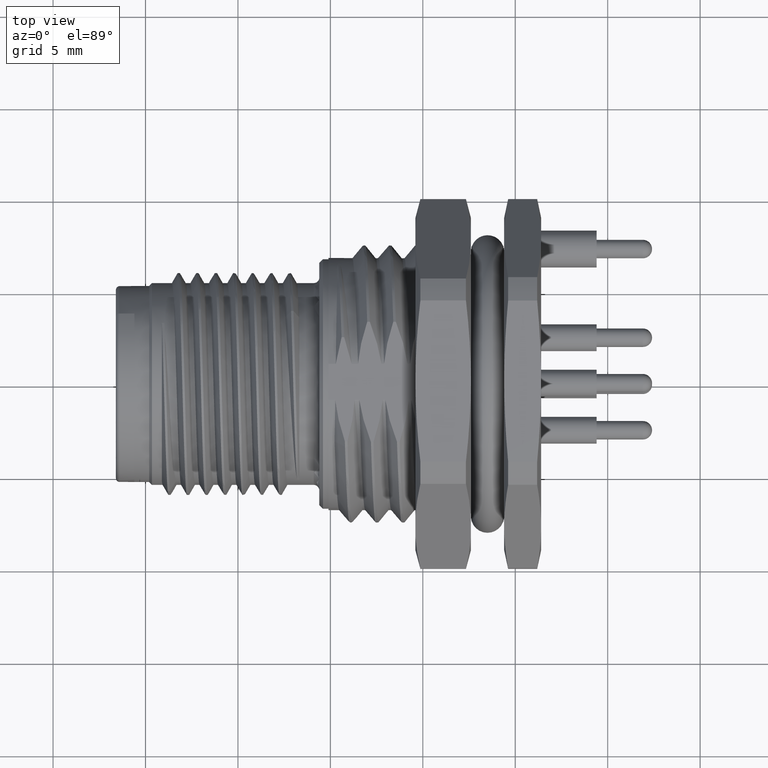
[diagram: clean part render]
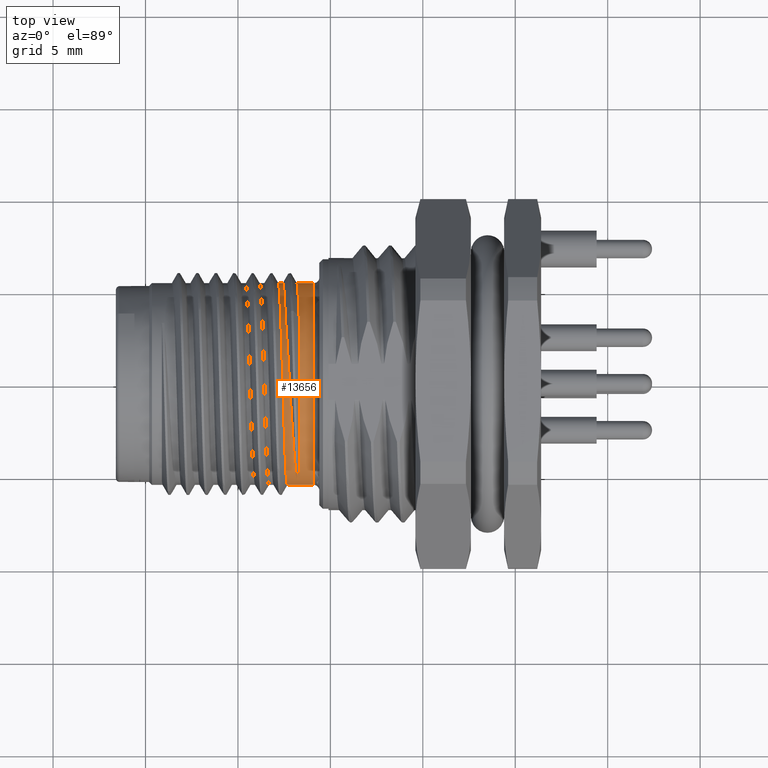
[diagram: same view with one face highlighted and labeled with its STEP entity id]
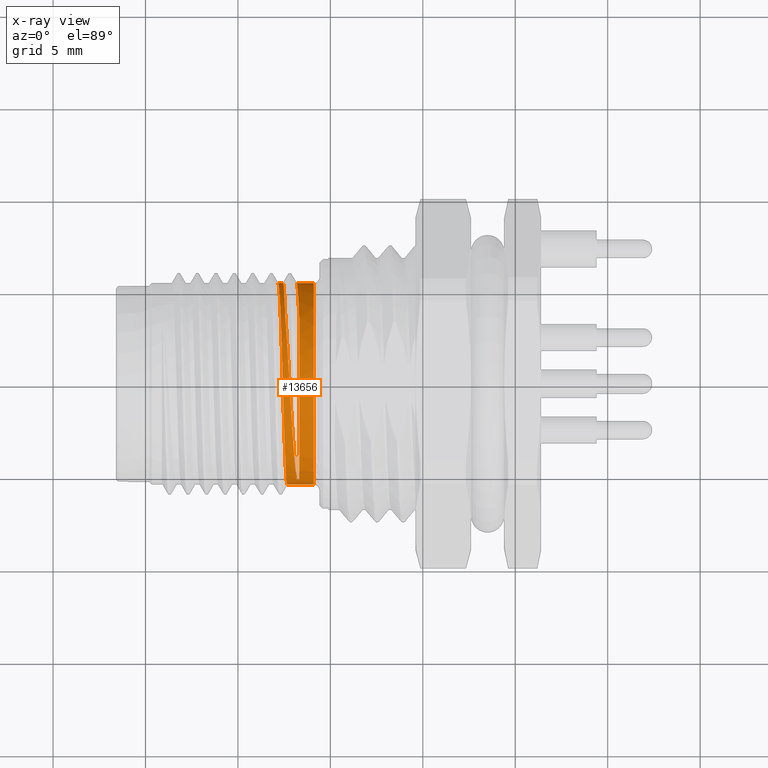
[diagram: x-ray of the same camera — body ghosted, the highlighted face saturated]
A machine part, top view. The second image highlights one B-rep face of the part: STEP entity #13656.
The next image is the same camera in x-ray: the body ghosted, the highlighted face saturated — about 0% of this face is hidden behind the body in this view.
In plain terms, the highlighted cylindrical surface (partial cylindrical patch) has radius 5.4585 mm, axis along (1, 0, 0).
Its self-contained STEP definition (entity closure, byte-faithful):
#3415=CARTESIAN_POINT('',(7.675120686960E0,-5.458525018541E0,
-2.230393729036E-10));
#3417=CARTESIAN_POINT('',(7.175120509848E0,5.458495704160E0,3.766285803682E-7));
#3459=CARTESIAN_POINT('',(7.424881341939E0,5.458496638041E0,
-4.055152426816E-7));
#3917=DIRECTION('',(-9.999999998459E-1,-1.755835828521E-5,-1.565326140255E-10));
#3918=VECTOR('',#3917,1.424879313259E0);
#3919=CARTESIAN_POINT('',(9.1E0,-5.458499999999E0,0.E0));
#3920=LINE('',#3919,#3918);
#3921=CARTESIAN_POINT('',(7.675120686960E0,-5.458525018541E0,
-2.230393729036E-10));
#3922=CARTESIAN_POINT('',(7.665884980685E0,-5.458525018541E0,
3.168483525468E-1));
#3923=CARTESIAN_POINT('',(7.647412595802E0,-5.403544641460E0,
9.510710541418E-1));
#3924=CARTESIAN_POINT('',(7.619388978433E0,-5.153341209540E0,1.882584283675E0));
#3925=CARTESIAN_POINT('',(7.591822220609E0,-4.750918075929E0,2.742173615203E0));
#3926=CARTESIAN_POINT('',(7.564394128363E0,-4.210654648442E0,3.516476265523E0));
#3927=CARTESIAN_POINT('',(7.536535023606E0,-3.534555910284E0,4.196848465922E0));
#3928=CARTESIAN_POINT('',(7.508418416229E0,-2.741758941024E0,4.752327152242E0));
#3929=CARTESIAN_POINT('',(7.480836022299E0,-1.880885890123E0,5.153011281189E0));
#3930=CARTESIAN_POINT('',(7.453294479508E0,-9.656654979504E-1,
5.400759915063E0));
#3931=CARTESIAN_POINT('',(7.425147465799E0,-4.294718997976E-4,
5.487316208391E0));
#3932=CARTESIAN_POINT('',(7.396997612250E0,9.649478244633E-1,5.400975160813E0));
#3933=CARTESIAN_POINT('',(7.369392038411E0,1.882264447350E0,5.152569041730E0));
#3934=CARTESIAN_POINT('',(7.341839168789E0,2.742091683410E0,4.752007903469E0));
#3935=CARTESIAN_POINT('',(7.313740093832E0,3.534484570355E0,4.197043513384E0));
#3936=CARTESIAN_POINT('',(7.285793553422E0,4.212584948882E0,3.514350509234E0));
#3937=CARTESIAN_POINT('',(7.258367710762E0,4.752220784842E0,2.739767035306E0));
#3938=CARTESIAN_POINT('',(7.230859095283E0,5.153496116052E0,1.881684755045E0));
#3939=CARTESIAN_POINT('',(7.202892032446E0,5.403198917020E0,9.527527553733E-1));
#3940=CARTESIAN_POINT('',(7.184443149966E0,5.458495704160E0,3.176776734118E-1));
#3941=CARTESIAN_POINT('',(7.175120509848E0,5.458495704160E0,3.766285803682E-7));
#3943=DIRECTION('',(9.999999999881E-1,3.739101046030E-6,-3.131571177481E-6));
#3944=VECTOR('',#3943,2.497608320942E-1);
#3945=CARTESIAN_POINT('',(7.175120509848E0,5.458495704160E0,3.766285803682E-7));
#3946=LINE('',#3945,#3944);
#3947=CARTESIAN_POINT('',(7.424881341939E0,5.458496638041E0,
-4.055152426816E-7));
#3948=CARTESIAN_POINT('',(7.434088676390E0,5.458496638041E0,3.137506018418E-1));
#3949=CARTESIAN_POINT('',(7.452340159062E0,5.404243739310E0,9.435036178518E-1));
#3950=CARTESIAN_POINT('',(7.480131818908E0,5.159143935359E0,1.866970069123E0));
#3951=CARTESIAN_POINT('',(7.508053719895E0,4.753789849840E0,2.738505664599E0));
#3952=CARTESIAN_POINT('',(7.535488113383E0,4.212113211879E0,3.514225564347E0));
#3953=CARTESIAN_POINT('',(7.553933551815E0,3.767874998755E0,3.961863722335E0));
#3954=CARTESIAN_POINT('',(7.563010596790E0,3.528812812239E0,4.164437393272E0));
#3956=CARTESIAN_POINT('',(8.313238394811E0,3.528817706702E0,4.164445504282E0));
#3957=CARTESIAN_POINT('',(8.304042558025E0,3.767879593451E0,3.961872087357E0));
#3958=CARTESIAN_POINT('',(8.285831575548E0,4.212116558584E0,3.514215278428E0));
#3959=CARTESIAN_POINT('',(8.258308941363E0,4.753789943753E0,2.738506704576E0));
#3960=CARTESIAN_POINT('',(8.230388987179E0,5.159143357295E0,1.866970731160E0));
#3961=CARTESIAN_POINT('',(8.202678028109E0,5.404245204167E0,9.435020107558E-1));
#3962=CARTESIAN_POINT('',(8.184210033991E0,5.458493421495E0,3.137549624589E-1));
#3963=CARTESIAN_POINT('',(8.175120914855E0,5.458493421495E0,3.916188395952E-7));
#3965=DIRECTION('',(9.999999999746E-1,7.112826187175E-6,-4.234270691011E-7));
#3966=VECTOR('',#3965,9.248790851685E-1);
#3967=CARTESIAN_POINT('',(8.175120914855E0,5.458493421495E0,3.916188395952E-7));
#3968=LINE('',#3967,#3966);
#4375=DIRECTION('',(-9.999999985032E-1,5.351729418803E-5,-1.137588721580E-5));
#4376=VECTOR('',#4375,1.249873751037E-1);
#4377=CARTESIAN_POINT('',(8.313254144682E0,-5.199258608949E0,1.662118164610E0));
#4378=LINE('',#4377,#4376);
#4419=CARTESIAN_POINT('',(8.313254926274E0,0.E0,0.E0));
#4420=DIRECTION('',(1.E0,0.E0,0.E0));
#4421=DIRECTION('',(0.E0,6.464819419080E-1,7.629292881958E-1));
#4422=AXIS2_PLACEMENT_3D('',#4419,#4420,#4421);
#4424=CARTESIAN_POINT('',(8.188266769765E0,-5.199251919963E0,1.662116742768E0));
#4425=CARTESIAN_POINT('',(8.171105021471E0,-5.109013125489E0,1.944392238202E0));
#4426=CARTESIAN_POINT('',(8.136894824029E0,-4.882270917540E0,2.494985481308E0));
#4427=CARTESIAN_POINT('',(8.084616637601E0,-4.410951926832E0,3.256708694572E0));
#4428=CARTESIAN_POINT('',(8.031950914996E0,-3.820559822899E0,3.932810127608E0));
#4429=CARTESIAN_POINT('',(7.980430659952E0,-3.126554284883E0,4.504330721906E0));
#4430=CARTESIAN_POINT('',(7.928019064485E0,-2.347790728175E0,4.955043486123E0));
#4431=CARTESIAN_POINT('',(7.875076477954E0,-1.505632979808E0,5.272347375709E0));
#4432=CARTESIAN_POINT('',(7.823465630696E0,-6.231065843073E-1,
5.447569672893E0));
#4433=CARTESIAN_POINT('',(7.771259684540E0,2.752990543636E-1,5.476105577124E0));
#4434=CARTESIAN_POINT('',(7.718403256924E0,1.164786918694E0,5.357776553950E0));
#4435=CARTESIAN_POINT('',(7.666932722559E0,2.021287711245E0,5.096627967248E0));
#4436=CARTESIAN_POINT('',(7.615189863095E0,2.821701576800E0,4.700801897722E0));
#4437=CARTESIAN_POINT('',(7.580334933841E0,3.303688719390E0,4.355200368252E0));
#4438=CARTESIAN_POINT('',(7.563010596790E0,3.528812812239E0,4.164437393272E0));
#4727=CARTESIAN_POINT('',(9.1E0,0.E0,0.E0));
#4728=DIRECTION('',(-1.E0,0.E0,0.E0));
#4729=DIRECTION('',(0.E0,-1.E0,0.E0));
#4730=AXIS2_PLACEMENT_3D('',#4727,#4728,#4729);
#8923=CARTESIAN_POINT('',(9.1E0,-5.458499999999E0,0.E0));
#8924=VERTEX_POINT('',#8923);
#8953=VERTEX_POINT('',#3417);
#8957=VERTEX_POINT('',#3459);
#8958=CARTESIAN_POINT('',(9.1E0,5.4585E0,0.E0));
#8959=VERTEX_POINT('',#8958);
#8960=CARTESIAN_POINT('',(8.175120914855E0,5.458493421495E0,3.916188395952E-7));
#8961=VERTEX_POINT('',#8960);
#8962=VERTEX_POINT('',#3415);
#8981=VERTEX_POINT('',#3954);
#8982=VERTEX_POINT('',#4424);
#8983=CARTESIAN_POINT('',(8.313254144682E0,-5.199258608949E0,1.662118164610E0));
#8984=VERTEX_POINT('',#8983);
#8985=CARTESIAN_POINT('',(8.313254926274E0,3.528821679905E0,4.164449519617E0));
#8986=VERTEX_POINT('',#8985);
#13632=CARTESIAN_POINT('',(1.75E-1,0.E0,0.E0));
#13633=DIRECTION('',(1.E0,0.E0,0.E0));
#13634=DIRECTION('',(0.E0,-1.E0,0.E0));
#13635=AXIS2_PLACEMENT_3D('',#13632,#13633,#13634);
#13636=CYLINDRICAL_SURFACE('',#13635,5.4585E0);
#13638=ORIENTED_EDGE('',*,*,#13637,.F.);
#13639=ORIENTED_EDGE('',*,*,#13442,.T.);
#13641=ORIENTED_EDGE('',*,*,#13640,.T.);
#13642=ORIENTED_EDGE('',*,*,#13458,.T.);
#13644=ORIENTED_EDGE('',*,*,#13643,.T.);
#13646=ORIENTED_EDGE('',*,*,#13645,.F.);
#13648=ORIENTED_EDGE('',*,*,#13647,.F.);
#13650=ORIENTED_EDGE('',*,*,#13649,.F.);
#13652=ORIENTED_EDGE('',*,*,#13651,.T.);
#13653=ORIENTED_EDGE('',*,*,#13438,.T.);
#13654=EDGE_LOOP('',(#13638,#13639,#13641,#13642,#13644,#13646,#13648,#13650,
#13652,#13653));
#13655=FACE_OUTER_BOUND('',#13654,.F.);
#13656=ADVANCED_FACE('',(#13655),#13636,.T.);
#3942=B_SPLINE_CURVE_WITH_KNOTS('',3,(#3921,#3922,#3923,#3924,#3925,#3926,#3927,
#3928,#3929,#3930,#3931,#3932,#3933,#3934,#3935,#3936,#3937,#3938,#3939,#3940,
#3941),.UNSPECIFIED.,.F.,.F.,(4,1,1,1,1,1,1,1,1,1,1,1,1,1,1,1,1,1,4),(0.E0,
5.555555555556E-2,1.111111111111E-1,1.666666666667E-1,2.222222222222E-1,
2.777777777778E-1,3.333333333333E-1,3.888888888889E-1,4.444444444444E-1,5.E-1,
5.555555555556E-1,6.111111111111E-1,6.666666666667E-1,7.222222222222E-1,
7.777777777778E-1,8.333333333333E-1,8.888888888889E-1,9.444444444444E-1,1.E0),
.UNSPECIFIED.);
#3955=B_SPLINE_CURVE_WITH_KNOTS('',3,(#3947,#3948,#3949,#3950,#3951,#3952,#3953,
#3954),.UNSPECIFIED.,.F.,.F.,(4,1,1,1,1,4),(0.E0,2.E-1,4.E-1,6.E-1,8.E-1,1.E0),
.UNSPECIFIED.);
#3964=B_SPLINE_CURVE_WITH_KNOTS('',3,(#3956,#3957,#3958,#3959,#3960,#3961,#3962,
#3963),.UNSPECIFIED.,.F.,.F.,(4,1,1,1,1,4),(0.E0,2.E-1,4.E-1,6.E-1,8.E-1,1.E0),
.UNSPECIFIED.);
#4423=CIRCLE('',#4422,5.4585E0);
#4439=B_SPLINE_CURVE_WITH_KNOTS('',3,(#4424,#4425,#4426,#4427,#4428,#4429,#4430,
#4431,#4432,#4433,#4434,#4435,#4436,#4437,#4438),.UNSPECIFIED.,.F.,.F.,(4,1,1,1,
1,1,1,1,1,1,1,1,4),(0.E0,8.333333333333E-2,1.666666666667E-1,2.5E-1,
3.333333333333E-1,4.166666666667E-1,5.E-1,5.833333333333E-1,6.666666666667E-1,
7.5E-1,8.333333333333E-1,9.166666666667E-1,1.E0),.UNSPECIFIED.);
#4731=CIRCLE('',#4730,5.458499999999E0);
#13438=EDGE_CURVE('',#8961,#8959,#3968,.T.);
#13442=EDGE_CURVE('',#8924,#8962,#3920,.T.);
#13458=EDGE_CURVE('',#8953,#8957,#3946,.T.);
#13637=EDGE_CURVE('',#8924,#8959,#4731,.T.);
#13640=EDGE_CURVE('',#8962,#8953,#3942,.T.);
#13643=EDGE_CURVE('',#8957,#8981,#3955,.T.);
#13645=EDGE_CURVE('',#8982,#8981,#4439,.T.);
#13647=EDGE_CURVE('',#8984,#8982,#4378,.T.);
#13649=EDGE_CURVE('',#8986,#8984,#4423,.T.);
#13651=EDGE_CURVE('',#8986,#8961,#3964,.T.);